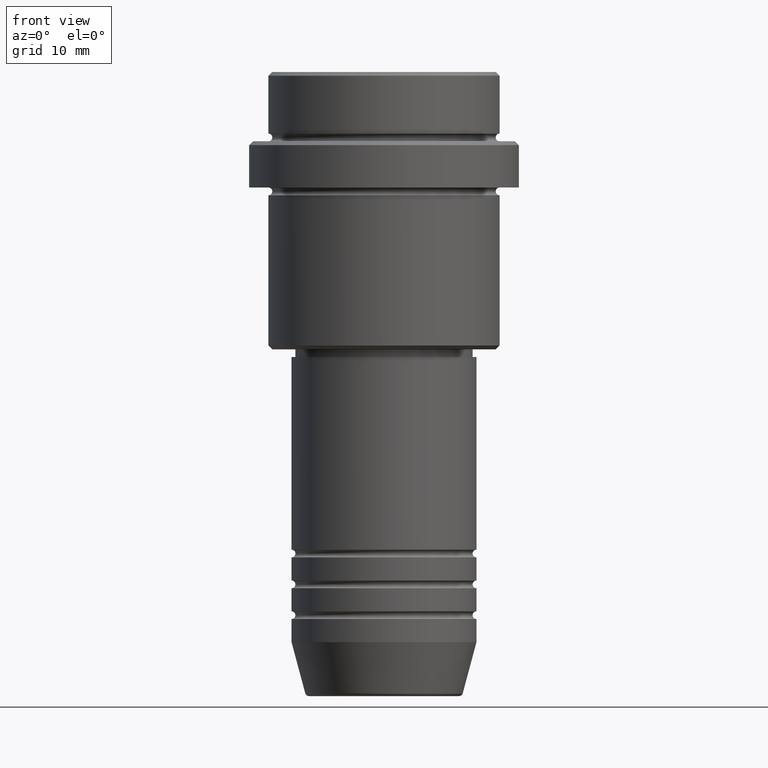
[diagram: clean part render]
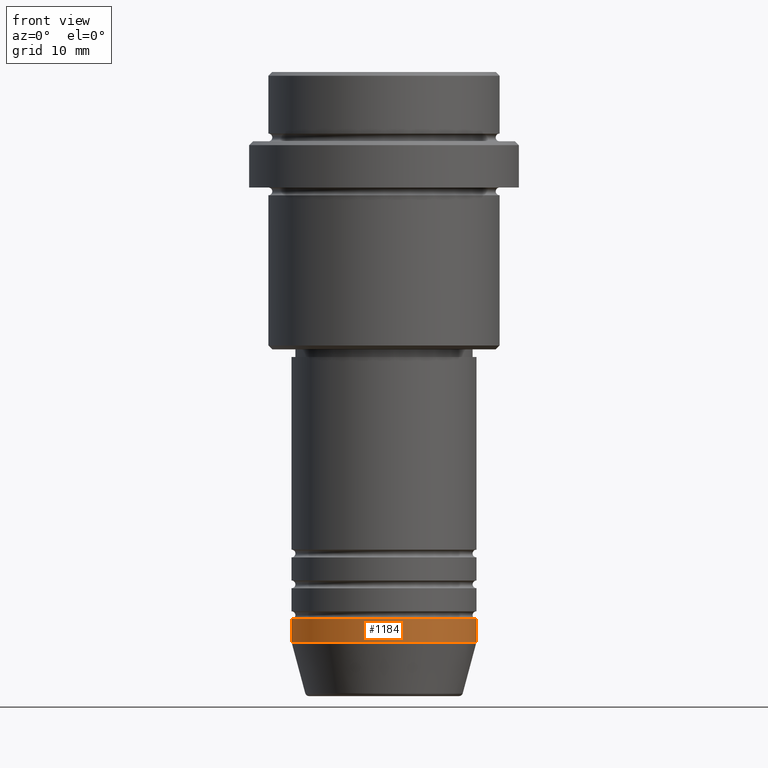
[diagram: same view with one face highlighted and labeled with its STEP entity id]
A machine part, front view. The second image highlights one B-rep face of the part: STEP entity #1184.
In plain terms, the highlighted cylindrical surface (partial cylindrical patch) has radius 12 mm, axis along (-0, -0, 1).
Its self-contained STEP definition (entity closure, byte-faithful):
#21 = CIRCLE ( 'NONE', #933, 12.00000000000000000 ) ;
#51 = CARTESIAN_POINT ( 'NONE',  ( 0.000000000000000000, 0.000000000000000000, -74.00000000000000000 ) ) ;
#61 = DIRECTION ( 'NONE',  ( 1.000000000000000000, 0.000000000000000000, 0.000000000000000000 ) ) ;
#116 = DIRECTION ( 'NONE',  ( -0.000000000000000000, -0.000000000000000000, 1.000000000000000000 ) ) ;
#153 = AXIS2_PLACEMENT_3D ( 'NONE', #51, #614, #61 ) ;
#232 = ORIENTED_EDGE ( 'NONE', *, *, #490, .T. ) ;
#251 = CIRCLE ( 'NONE', #153, 12.00000000000000000 ) ;
#263 = LINE ( 'NONE', #1100, #851 ) ;
#274 = DIRECTION ( 'NONE',  ( -0.000000000000000000, -0.000000000000000000, 1.000000000000000000 ) ) ;
#306 = DIRECTION ( 'NONE',  ( 1.000000000000000000, 0.000000000000000000, 0.000000000000000000 ) ) ;
#311 = CARTESIAN_POINT ( 'NONE',  ( 0.000000000000000000, 0.000000000000000000, 0.000000000000000000 ) ) ;
#330 = CYLINDRICAL_SURFACE ( 'NONE', #562, 12.00000000000000000 ) ;
#415 = VECTOR ( 'NONE', #274, 1000.000000000000000 ) ;
#490 = EDGE_CURVE ( 'NONE', #946, #550, #263, .T. ) ;
#511 = EDGE_CURVE ( 'NONE', #1153, #946, #251, .T. ) ;
#539 = DIRECTION ( 'NONE',  ( 1.000000000000000000, 0.000000000000000000, 0.000000000000000000 ) ) ;
#550 = VERTEX_POINT ( 'NONE', #1176 ) ;
#562 = AXIS2_PLACEMENT_3D ( 'NONE', #311, #116, #539 ) ;
#614 = DIRECTION ( 'NONE',  ( -0.000000000000000000, -0.000000000000000000, 1.000000000000000000 ) ) ;
#674 = FACE_OUTER_BOUND ( 'NONE', #1171, .T. ) ;
#688 = EDGE_CURVE ( 'NONE', #1083, #550, #21, .T. ) ;
#730 = LINE ( 'NONE', #1250, #415 ) ;
#759 = CARTESIAN_POINT ( 'NONE',  ( 0.000000000000000000, 0.000000000000000000, -71.00000000000000000 ) ) ;
#760 = ORIENTED_EDGE ( 'NONE', *, *, #1403, .F. ) ;
#790 = CARTESIAN_POINT ( 'NONE',  ( 12.00000000000000000, 0.000000000000000000, -74.00000000000000000 ) ) ;
#851 = VECTOR ( 'NONE', #884, 1000.000000000000000 ) ;
#884 = DIRECTION ( 'NONE',  ( -0.000000000000000000, -0.000000000000000000, 1.000000000000000000 ) ) ;
#933 = AXIS2_PLACEMENT_3D ( 'NONE', #759, #1291, #306 ) ;
#946 = VERTEX_POINT ( 'NONE', #790 ) ;
#993 = ORIENTED_EDGE ( 'NONE', *, *, #511, .T. ) ;
#1047 = CARTESIAN_POINT ( 'NONE',  ( -12.00000000000000000, 1.469576158976823947E-15, -71.00000000000000000 ) ) ;
#1082 = CARTESIAN_POINT ( 'NONE',  ( -12.00000000000000000, 1.469576158976823947E-15, -74.00000000000000000 ) ) ;
#1083 = VERTEX_POINT ( 'NONE', #1047 ) ;
#1100 = CARTESIAN_POINT ( 'NONE',  ( 12.00000000000000000, 0.000000000000000000, 0.000000000000000000 ) ) ;
#1153 = VERTEX_POINT ( 'NONE', #1082 ) ;
#1171 = EDGE_LOOP ( 'NONE', ( #760, #993, #232, #1265 ) ) ;
#1176 = CARTESIAN_POINT ( 'NONE',  ( 12.00000000000000000, 0.000000000000000000, -71.00000000000000000 ) ) ;
#1184 = ADVANCED_FACE ( 'NONE', ( #674 ), #330, .T. ) ;
#1250 = CARTESIAN_POINT ( 'NONE',  ( -12.00000000000000000, 1.469576158976823947E-15, 0.000000000000000000 ) ) ;
#1265 = ORIENTED_EDGE ( 'NONE', *, *, #688, .F. ) ;
#1291 = DIRECTION ( 'NONE',  ( -0.000000000000000000, -0.000000000000000000, 1.000000000000000000 ) ) ;
#1403 = EDGE_CURVE ( 'NONE', #1153, #1083, #730, .T. ) ;